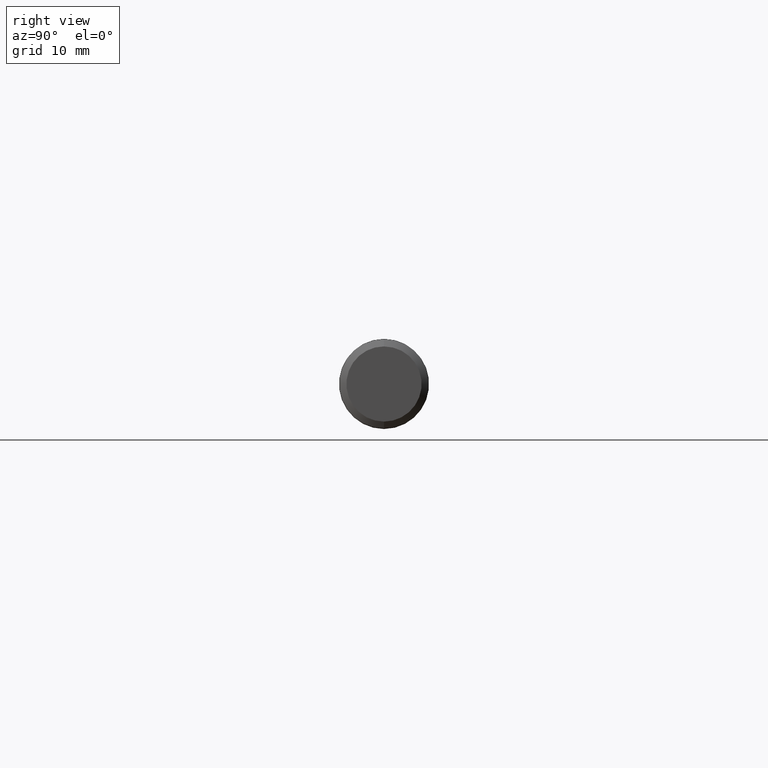
[diagram: clean part render]
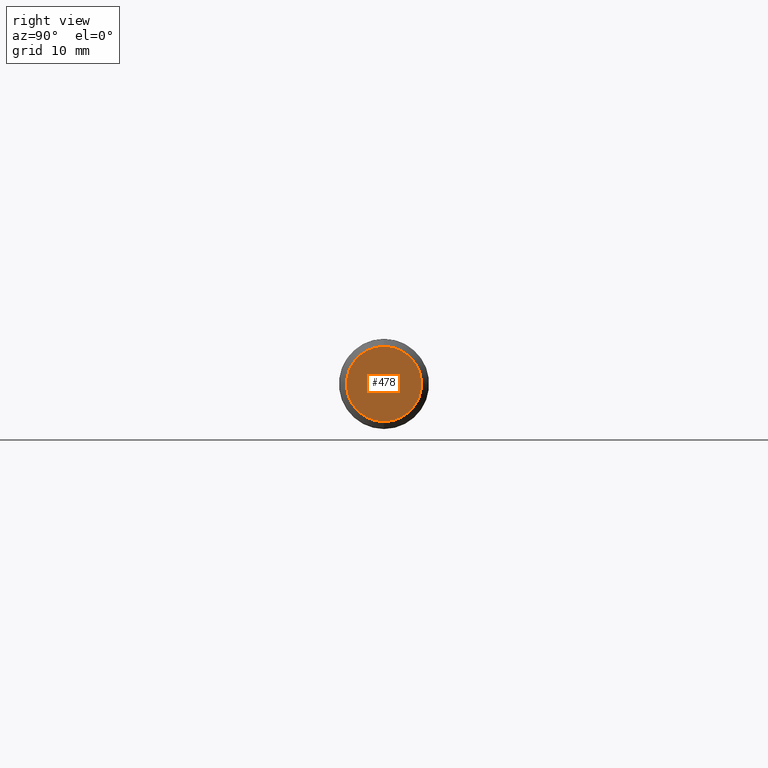
[diagram: same view with one face highlighted and labeled with its STEP entity id]
A machine part, right view. The second image highlights one B-rep face of the part: STEP entity #478.
In plain terms, the highlighted planar face has unit normal (1, 0, -0).
Its self-contained STEP definition (entity closure, byte-faithful):
#327 = DIRECTION ( 'NONE',  ( -0.000000000000000000, 0.000000000000000000, -1.000000000000000000 ) ) ;
#478 = ADVANCED_FACE ( 'NONE', ( #2178 ), #3932, .T. ) ;
#925 = DIRECTION ( 'NONE',  ( 1.000000000000000000, -0.000000000000000000, -0.000000000000000000 ) ) ;
#964 = DIRECTION ( 'NONE',  ( 0.000000000000000000, 0.000000000000000000, -1.000000000000000000 ) ) ;
#1138 = AXIS2_PLACEMENT_3D ( 'NONE', #4484, #925, #964 ) ;
#1639 = ORIENTED_EDGE ( 'NONE', *, *, #2924, .T. ) ;
#1720 = EDGE_LOOP ( 'NONE', ( #4616, #1639 ) ) ;
#1803 = DIRECTION ( 'NONE',  ( 1.000000000000000000, 0.000000000000000000, -0.000000000000000000 ) ) ;
#2178 = FACE_OUTER_BOUND ( 'NONE', #1720, .T. ) ;
#2189 = DIRECTION ( 'NONE',  ( 1.000000000000000000, -0.000000000000000000, -0.000000000000000000 ) ) ;
#2202 = CARTESIAN_POINT ( 'NONE',  ( 4.000000000000000000, 0.2474999999999999978, 0.000000000000000000 ) ) ;
#2343 = CIRCLE ( 'NONE', #1138, 0.2087296319954271839 ) ;
#2520 = AXIS2_PLACEMENT_3D ( 'NONE', #2610, #2189, #2588 ) ;
#2588 = DIRECTION ( 'NONE',  ( 0.000000000000000000, 0.000000000000000000, -1.000000000000000000 ) ) ;
#2610 = CARTESIAN_POINT ( 'NONE',  ( 4.000000000000000000, 0.000000000000000000, 0.000000000000000000 ) ) ;
#2924 = EDGE_CURVE ( 'NONE', #3163, #4036, #2343, .T. ) ;
#2960 = CARTESIAN_POINT ( 'NONE',  ( 4.000000000000000000, 2.556200757104048848E-17, -0.2087296319954271839 ) ) ;
#3163 = VERTEX_POINT ( 'NONE', #2960 ) ;
#3239 = EDGE_CURVE ( 'NONE', #4036, #3163, #3411, .T. ) ;
#3411 = CIRCLE ( 'NONE', #2520, 0.2087296319954271839 ) ;
#3881 = AXIS2_PLACEMENT_3D ( 'NONE', #2202, #1803, #327 ) ;
#3932 = PLANE ( 'NONE',  #3881 ) ;
#4036 = VERTEX_POINT ( 'NONE', #4303 ) ;
#4303 = CARTESIAN_POINT ( 'NONE',  ( 4.000000000000000000, 0.000000000000000000, 0.2087296319954271839 ) ) ;
#4484 = CARTESIAN_POINT ( 'NONE',  ( 4.000000000000000000, 0.000000000000000000, 0.000000000000000000 ) ) ;
#4616 = ORIENTED_EDGE ( 'NONE', *, *, #3239, .T. ) ;